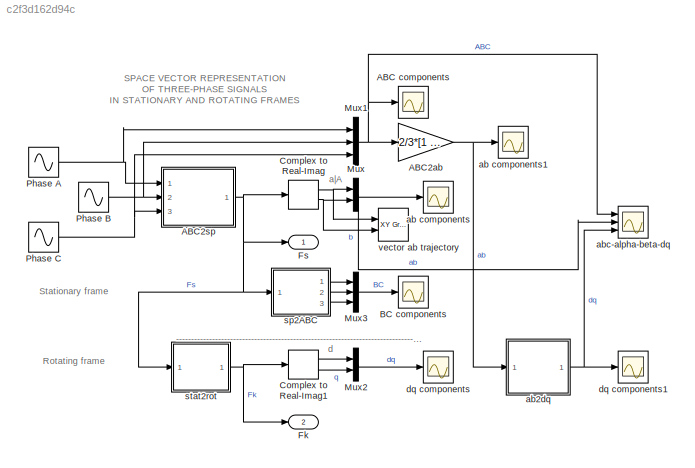
MODEL slx_c2f3d162d94c
KIND model
CONFIG AbsTol = auto
CONFIG FixedStep = auto
CONFIG InitFcn = close all;\nclear all;\nphase=pi/2;
CONFIG MaxStep = .00333
CONFIG MinStep = auto
CONFIG RelTol = 1e-4
CONFIG SampleTimeConstraint = Unconstrained
CONFIG Solver = ode45
CONFIG SolverMode = Auto
CONFIG SolverName = ode45
CONFIG StartTime = 0.0
CONFIG StopFcn = close all;\nset(0,'defaultfigureposition',[0 0 450 450]')\n\nfigure(1);\ncompass(Fs);\naxis equal;\ntitle('SPACE VECTOR in stationary frame');\n\nset(0,'defaultfigureposition',[750 0 450 450]')\nfigure(2)\ncompass(Fk,'r')\naxis equal;\ntitle('SPACE VECTOR in rotating frame')
CONFIG StopTime = .02
BLOCK [Scope] ABC components
  DataFormat = StructureWithTime
  Floating = off
  NumInputPorts = 1
  Ports = [1]
  SampleInput = on
  SampleTime = 10e-6
  TimeRange = 0.02
  YMax = 1
  YMin = -1
BLOCK [Gain] ABC2ab
  Gain = 2/3*[1 -0.5 -0.5;0 0.86667 -0.86667]
  Multiplication = Matrix(K*u)
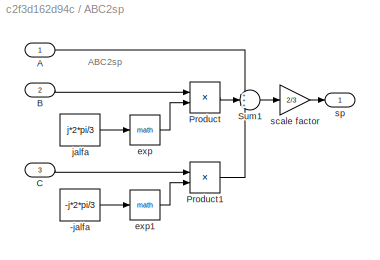
BLOCK [SubSystem] ABC2sp
  Ports = [3, 1]
  RequestExecContextInheritance = off
BLOCK [Constant] ABC2sp/-jalfa
  Value = -j*2*pi/3
BLOCK [Inport] ABC2sp/A
  IconDisplay = Port number
BLOCK [Inport] ABC2sp/B
  IconDisplay = Port number
  Port = 2
BLOCK [Inport] ABC2sp/C
  IconDisplay = Port number
  Port = 3
BLOCK [Product] ABC2sp/Product
  Ports = [2, 1]
  RndMeth = Floor
BLOCK [Product] ABC2sp/Product1
  Ports = [2, 1]
  RndMeth = Floor
BLOCK [Sum] ABC2sp/Sum1
  IconShape = round
  Inputs = +++
  Ports = [3, 1]
BLOCK [Math] ABC2sp/exp
  Ports = [1, 1]
BLOCK [Math] ABC2sp/exp1
  Ports = [1, 1]
BLOCK [Constant] ABC2sp/jalfa
  Value = j*2*pi/3
BLOCK [Gain] ABC2sp/scale factor
  Gain = 2/3
BLOCK [Outport] ABC2sp/sp
  IconDisplay = Port number
BLOCK [Scope] BC components
  DataFormat = StructureWithTime
  Floating = off
  NumInputPorts = 1
  Ports = [1]
  SampleTime = 0
  TimeRange = 0.02
  YMax = 1
  YMin = -1
  ZoomMode = yonly
BLOCK [ComplexToRealImag] Complex to Real-Imag
  Ports = [1, 2]
BLOCK [ComplexToRealImag] Complex to Real-Imag1
  Ports = [1, 2]
BLOCK [Outport] Fk
  IconDisplay = Port number
  Port = 2
BLOCK [Outport] Fs
  IconDisplay = Port number
BLOCK [Mux] Mux
  DisplayOption = bar
  Inputs = 2
  Ports = [2, 1]
BLOCK [Mux] Mux1
  DisplayOption = bar
  Inputs = 3
  Ports = [3, 1]
BLOCK [Mux] Mux2
  DisplayOption = bar
  Inputs = 2
  Ports = [2, 1]
BLOCK [Mux] Mux3
  DisplayOption = bar
  Inputs = 3
  Ports = [3, 1]
BLOCK [Sin] Phase A 
  Frequency = 2*pi*50
  Phase = phase
  Ports = [0, 1]
  SampleTime = 0
BLOCK [Sin] Phase B
  Frequency = 2*pi*50
  Phase = 2*pi/3+phase
  Ports = [0, 1]
  SampleTime = 0
BLOCK [Sin] Phase C
  Frequency = 2*pi*50
  Phase = 4*pi/3+phase
  Ports = [0, 1]
  SampleTime = 0
BLOCK [Scope] ab components
  DataFormat = StructureWithTime
  Floating = off
  NumInputPorts = 1
  Ports = [1]
  SampleTime = 0
  TimeRange = 0.02
  YMax = 1
  YMin = -1
  ZoomMode = yonly
BLOCK [Scope] ab components1
  DataFormat = StructureWithTime
  Floating = off
  NumInputPorts = 1
  Ports = [1]
  SampleTime = 0
  TimeRange = 0.02
  YMax = 1.5
  YMin = -0.5
  ZoomMode = yonly
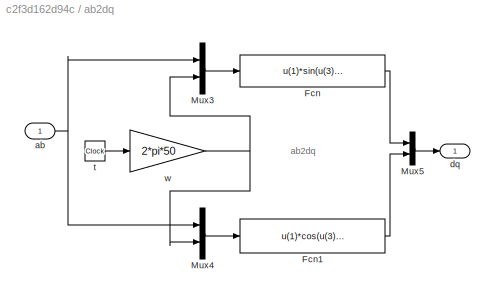
BLOCK [SubSystem] ab2dq
  Ports = [1, 1]
  RequestExecContextInheritance = off
BLOCK [Fcn] ab2dq/Fcn
  Expr = u(1)*sin(u(3))+u(2)*cos(u(3))
BLOCK [Fcn] ab2dq/Fcn1
  Expr = u(1)*cos(u(3))-u(2)*sin(u(3))
BLOCK [Mux] ab2dq/Mux3
  DisplayOption = bar
  Inputs = 2
  Ports = [2, 1]
BLOCK [Mux] ab2dq/Mux4
  DisplayOption = bar
  Inputs = 2
  Ports = [2, 1]
BLOCK [Mux] ab2dq/Mux5
  DisplayOption = bar
  Inputs = 2
  Ports = [2, 1]
BLOCK [Inport] ab2dq/ab
  IconDisplay = Port number
BLOCK [Outport] ab2dq/dq
  IconDisplay = Port number
BLOCK [Clock] ab2dq/t
BLOCK [Gain] ab2dq/w
  Gain = 2*pi*50
BLOCK [Scope] abc-alpha-beta-dq
  DataFormat = StructureWithTime
  Floating = off
  NumInputPorts = 3
  Ports = [3]
  SampleInput = on
  SampleTime = 0
  SaveName = ScopeData1
  TimeRange = 0.02
  YMax = 1.25~1.25~1.25
  YMin = -1.25~-1.25~-0.5
  ZoomMode = yonly
BLOCK [Scope] dq components
  DataFormat = StructureWithTime
  Floating = off
  NumInputPorts = 1
  Ports = [1]
  SampleTime = 0
  TimeRange = 0.02
  YMax = 1
  YMin = -1
  ZoomMode = yonly
BLOCK [Scope] dq components1
  DataFormat = StructureWithTime
  Floating = off
  NumInputPorts = 1
  Ports = [1]
  SampleTime = 0
  TimeRange = 0.02
  YMax = 1.2
  YMin = -0.2
  ZoomMode = yonly
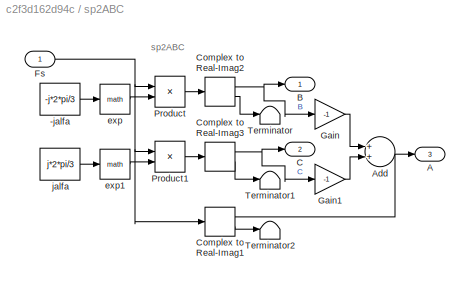
BLOCK [SubSystem] sp2ABC
  Ports = [1, 3]
  RequestExecContextInheritance = off
BLOCK [Constant] sp2ABC/-jalfa
  Value = -j*2*pi/3
BLOCK [Outport] sp2ABC/A
  IconDisplay = Port number
  Port = 3
BLOCK [Sum] sp2ABC/Add
  InputSameDT = off
  OutDataTypeStr = Inherit: Inherit via internal rule
  Ports = [2, 1]
  SaturateOnIntegerOverflow = off
BLOCK [Outport] sp2ABC/B
  IconDisplay = Port number
BLOCK [Outport] sp2ABC/C
  IconDisplay = Port number
  Port = 2
BLOCK [ComplexToRealImag] sp2ABC/Complex to Real-Imag1
  Ports = [1, 2]
BLOCK [ComplexToRealImag] sp2ABC/Complex to Real-Imag2
  Ports = [1, 2]
BLOCK [ComplexToRealImag] sp2ABC/Complex to Real-Imag3
  Ports = [1, 2]
BLOCK [Inport] sp2ABC/Fs
  IconDisplay = Port number
BLOCK [Gain] sp2ABC/Gain
  Gain = -1
  OutDataTypeStr = Inherit: Inherit via internal rule
  ParamDataTypeStr = Inherit: Inherit via internal rule
  SaturateOnIntegerOverflow = off
BLOCK [Gain] sp2ABC/Gain1
  Gain = -1
  OutDataTypeStr = Inherit: Inherit via internal rule
  ParamDataTypeStr = Inherit: Inherit via internal rule
  SaturateOnIntegerOverflow = off
BLOCK [Product] sp2ABC/Product
  Ports = [2, 1]
  RndMeth = Floor
BLOCK [Product] sp2ABC/Product1
  Ports = [2, 1]
  RndMeth = Floor
BLOCK [Terminator] sp2ABC/Terminator
BLOCK [Terminator] sp2ABC/Terminator1
BLOCK [Terminator] sp2ABC/Terminator2
BLOCK [Math] sp2ABC/exp
  Ports = [1, 1]
BLOCK [Math] sp2ABC/exp1
  Ports = [1, 1]
BLOCK [Constant] sp2ABC/jalfa
  Value = j*2*pi/3
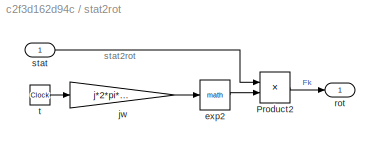
BLOCK [SubSystem] stat2rot
  Ports = [1, 1]
  RequestExecContextInheritance = off
BLOCK [Product] stat2rot/Product2
  Ports = [2, 1]
  RndMeth = Floor
BLOCK [Math] stat2rot/exp2
  Ports = [1, 1]
BLOCK [Gain] stat2rot/jw
  Gain = j*2*pi*50
BLOCK [Outport] stat2rot/rot
  IconDisplay = Port number
BLOCK [Inport] stat2rot/stat
  IconDisplay = Port number
BLOCK [Clock] stat2rot/t
BLOCK [Reference] vector ab trajectory  REF=simulink/Sinks/XY Graph
  Ports = [2]
  SourceBlock = simulink/Sinks/XY Graph
  SourceType = XY scope.
  st = -1
  xmax = 1
  xmin = -1
  ymax = 1
  ymin = -1
ANNOTATION (root): ----------------------------------------------------------------------------------------------------------------------------------------------------------------------
ANNOTATION (root): Rotating frame
ANNOTATION (root): SPACE VECTOR REPRESENTATION OF THREE-PHASE SIGNALS IN STATIONARY AND ROTATING FRAMES
ANNOTATION (root): Stationary frame
ANNOTATION (root): a|A
ANNOTATION (root): d
ANNOTATION ABC2sp: ABC2sp
ANNOTATION ab2dq: ab2dq
ANNOTATION sp2ABC: sp2ABC
ANNOTATION stat2rot: stat2rot
NET ABC2ab:1 -> ab components1:1, ab2dq:1
LINE ABC2sp/-jalfa:1 -> ABC2sp/exp1:1
LINE ABC2sp/A:1 -> ABC2sp/Sum1:1
LINE ABC2sp/B:1 -> ABC2sp/Product:1
LINE ABC2sp/C:1 -> ABC2sp/Product1:1
LINE ABC2sp/Product1:1 -> ABC2sp/Sum1:3
LINE ABC2sp/Product:1 -> ABC2sp/Sum1:2
LINE ABC2sp/Sum1:1 -> ABC2sp/scale factor:1
LINE ABC2sp/exp1:1 -> ABC2sp/Product1:2
LINE ABC2sp/exp:1 -> ABC2sp/Product:2
LINE ABC2sp/jalfa:1 -> ABC2sp/exp:1
LINE ABC2sp/scale factor:1 -> ABC2sp/sp:1
NET ABC2sp:1 -> Complex to Real-Imag:1, Fs:1, sp2ABC:1, stat2rot:1
LINE Complex to Real-Imag1:1 -> Mux2:1
LINE Complex to Real-Imag1:2 -> Mux2:2
NET Complex to Real-Imag:1 -> Mux:1, vector ab trajectory:1
NET Complex to Real-Imag:2 -> Mux:2, vector ab trajectory:2
NET Mux1:1 -> ABC components:1, ABC2ab:1, abc-alpha-beta-dq:1
LINE Mux2:1 -> dq components:1
LINE Mux3:1 -> BC components:1
NET Mux:1 -> ab components:1, abc-alpha-beta-dq:2
NET Phase A :1 -> ABC2sp:1, Mux1:1
NET Phase B:1 -> ABC2sp:2, Mux1:2
NET Phase C:1 -> ABC2sp:3, Mux1:3
LINE ab2dq/Fcn1:1 -> ab2dq/Mux5:2
LINE ab2dq/Fcn:1 -> ab2dq/Mux5:1
LINE ab2dq/Mux3:1 -> ab2dq/Fcn:1
LINE ab2dq/Mux4:1 -> ab2dq/Fcn1:1
LINE ab2dq/Mux5:1 -> ab2dq/dq:1
NET ab2dq/ab:1 -> ab2dq/Mux3:1, ab2dq/Mux4:1
LINE ab2dq/t:1 -> ab2dq/w:1
NET ab2dq/w:1 -> ab2dq/Mux3:2, ab2dq/Mux4:2
NET ab2dq:1 -> abc-alpha-beta-dq:3, dq components1:1
LINE sp2ABC/-jalfa:1 -> sp2ABC/exp:1
LINE sp2ABC/Complex to Real-Imag1:1 -> sp2ABC/A:1
LINE sp2ABC/Complex to Real-Imag1:2 -> sp2ABC/Terminator2:1
NET sp2ABC/Complex to Real-Imag2:1 -> sp2ABC/B:1, sp2ABC/Gain:1
LINE sp2ABC/Complex to Real-Imag2:2 -> sp2ABC/Terminator:1
NET sp2ABC/Complex to Real-Imag3:1 -> sp2ABC/C:1, sp2ABC/Gain1:1
LINE sp2ABC/Complex to Real-Imag3:2 -> sp2ABC/Terminator1:1
NET sp2ABC/Fs:1 -> sp2ABC/Complex to Real-Imag1:1, sp2ABC/Product1:1, sp2ABC/Product:1
LINE sp2ABC/Gain1:1 -> sp2ABC/Add:2
LINE sp2ABC/Gain:1 -> sp2ABC/Add:1
LINE sp2ABC/Product1:1 -> sp2ABC/Complex to Real-Imag3:1
LINE sp2ABC/Product:1 -> sp2ABC/Complex to Real-Imag2:1
LINE sp2ABC/exp1:1 -> sp2ABC/Product1:2
LINE sp2ABC/exp:1 -> sp2ABC/Product:2
LINE sp2ABC/jalfa:1 -> sp2ABC/exp1:1
LINE sp2ABC:1 -> Mux3:1
LINE sp2ABC:2 -> Mux3:2
LINE sp2ABC:3 -> Mux3:3
LINE stat2rot/Product2:1 -> stat2rot/rot:1
LINE stat2rot/exp2:1 -> stat2rot/Product2:2
LINE stat2rot/jw:1 -> stat2rot/exp2:1
LINE stat2rot/stat:1 -> stat2rot/Product2:1
LINE stat2rot/t:1 -> stat2rot/jw:1
NET stat2rot:1 -> Complex to Real-Imag1:1, Fk:1
note: NET lines group one-source signal fan-out (src -> all destinations, sorted); 1:1 wires keep LINE
